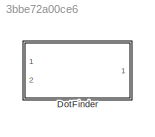
MODEL slx_3bbe72a00ce6
KIND library
CONFIG AbsTol = auto
CONFIG EnableMultiTasking = off
CONFIG FixedStep = auto
CONFIG MaxStep = auto
CONFIG MinStep = auto
CONFIG RelTol = 1e-3
CONFIG SampleTimeConstraint = Unconstrained
CONFIG Solver = VariableStepAuto
CONFIG SolverName = VariableStepAuto
CONFIG StartTime = 0.0
CONFIG StopTime = 10.0
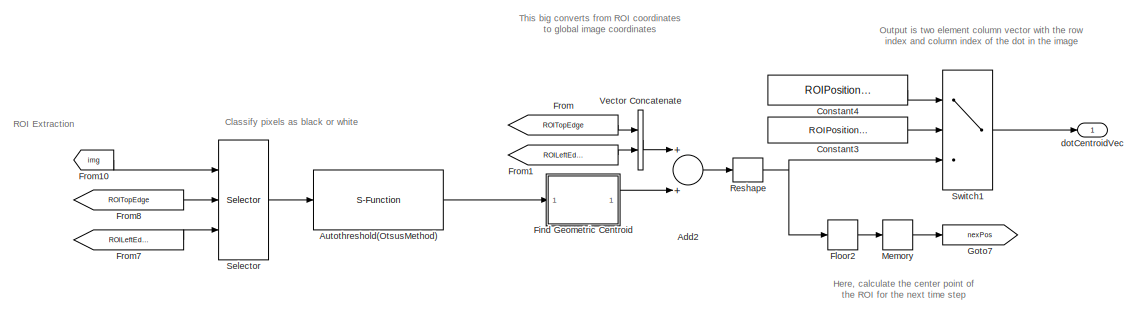
[diagram: DotFinder - part 1/2, top right region]
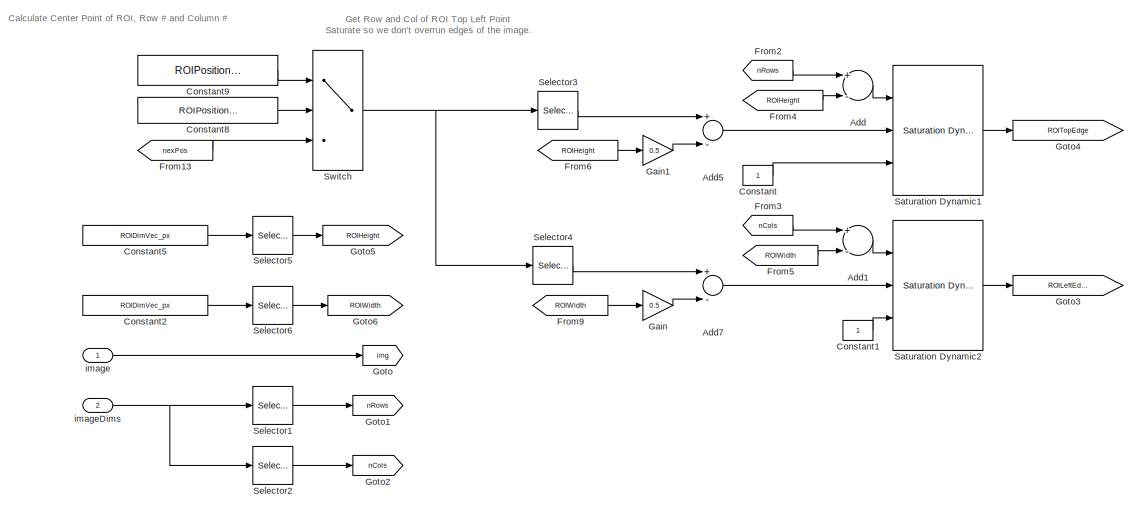
[diagram: DotFinder - part 2/2, left side, full height]
BLOCK [SubSystem] DotFinder
  Ports = [2, 1]
  RequestExecContextInheritance = off
BLOCK [Sum] DotFinder/Add
  InputSameDT = off
  Inputs = +-
  OutDataTypeStr = Inherit: Inherit via internal rule
  Ports = [2, 1]
  SaturateOnIntegerOverflow = off
BLOCK [Sum] DotFinder/Add1
  InputSameDT = off
  Inputs = +-
  OutDataTypeStr = Inherit: Inherit via internal rule
  Ports = [2, 1]
  SaturateOnIntegerOverflow = off
BLOCK [Sum] DotFinder/Add2
  InputSameDT = off
  OutDataTypeStr = Inherit: Inherit via internal rule
  Ports = [2, 1]
  SaturateOnIntegerOverflow = off
BLOCK [Sum] DotFinder/Add5
  InputSameDT = off
  Inputs = +-
  OutDataTypeStr = Inherit: Inherit via internal rule
  Ports = [2, 1]
  SaturateOnIntegerOverflow = off
BLOCK [Sum] DotFinder/Add7
  InputSameDT = off
  Inputs = +-
  OutDataTypeStr = Inherit: Inherit via internal rule
  Ports = [2, 1]
  SaturateOnIntegerOverflow = off
BLOCK [S-Function] DotFinder/Autothreshold(OtsusMethod)
  DialogController = vipDDGCreate
  EnableBusSupport = off
  FunctionName = svipgraythresh
  Parameters = operator, userDefinedRange, umin, umax, threshOut, effMetricOut, outOfRngOpt, scaleThreshold, scaleFactor, P1Mode, P1WordLength, P1FracLength, A1Mode, A1WordLength, A1FracLength, P2Mode, P2WordLength, P2FracLength, A2Mode, A2WordLength, A2FracLength, P3Mode, P3WordLength, P3FracLength, A3Mode, A3WordLength, A3FracLength, P4Mode, P4WordLength, P4FracLength, A4Mode, A4WordLength, A4FracLength, Q1Mod...<+107ch>
  Ports = [1, 1]
  SFcnIsStateOwnerBlock = off
  SFunctionDeploymentMode = off
BLOCK [Constant] DotFinder/Constant
BLOCK [Constant] DotFinder/Constant1
BLOCK [Constant] DotFinder/Constant2
  Value = ROIDimVec_px
BLOCK [Constant] DotFinder/Constant3
  Value = ROIPositionHoldEnable
BLOCK [Constant] DotFinder/Constant4
  Value = ROIPositionHoldCoordinates
BLOCK [Constant] DotFinder/Constant5
  Value = ROIDimVec_px
BLOCK [Constant] DotFinder/Constant8
  Value = ROIPositionHoldEnable
BLOCK [Constant] DotFinder/Constant9
  Value = ROIPositionHoldCoordinates
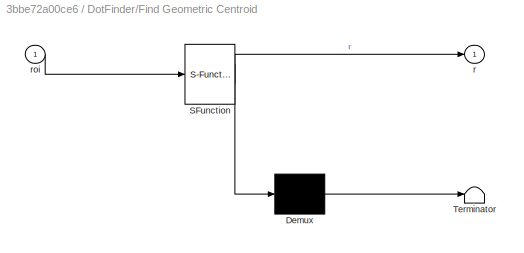
BLOCK [SubSystem] DotFinder/Find Geometric Centroid
  ErrorFcn = Stateflow.Translate.translate
  PermitHierarchicalResolution = ExplicitOnly
  Ports = [1, 1]
  RequestExecContextInheritance = off
  SFBlockType = MATLAB Function
  TreatAsAtomicUnit = on
BLOCK [Demux] DotFinder/Find Geometric Centroid/ Demux 
  Outputs = 1
  Ports = [1, 1]
BLOCK [S-Function] DotFinder/Find Geometric Centroid/ SFunction 
  EnableBusSupport = off
  FunctionName = sf_sfun
  PortCounts = [1 2]
  Ports = [1, 2]
  SFcnIsStateOwnerBlock = off
  SFunctionDeploymentMode = off
  Tag = Stateflow S-Function dotFinder_ul 2
BLOCK [Terminator] DotFinder/Find Geometric Centroid/ Terminator 
BLOCK [Outport] DotFinder/Find Geometric Centroid/r
  IconDisplay = Port number
BLOCK [Inport] DotFinder/Find Geometric Centroid/roi
  IconDisplay = Port number
BLOCK [Rounding] DotFinder/Floor2
  Operator = round
BLOCK [From] DotFinder/From
  GotoTag = ROITopEdge
BLOCK [From] DotFinder/From1
  GotoTag = ROILeftEdge
BLOCK [From] DotFinder/From10
  GotoTag = img
BLOCK [From] DotFinder/From13
  GotoTag = nexPos
BLOCK [From] DotFinder/From2
  GotoTag = nRows
BLOCK [From] DotFinder/From3
  GotoTag = nCols
BLOCK [From] DotFinder/From4
  GotoTag = ROIHeight
BLOCK [From] DotFinder/From5
  GotoTag = ROIWidth
BLOCK [From] DotFinder/From6
  GotoTag = ROIHeight
BLOCK [From] DotFinder/From7
  GotoTag = ROILeftEdge
BLOCK [From] DotFinder/From8
  GotoTag = ROITopEdge
BLOCK [From] DotFinder/From9
  GotoTag = ROIWidth
BLOCK [Gain] DotFinder/Gain
  Gain = 0.5
  OutDataTypeStr = Inherit: Inherit via internal rule
  ParamDataTypeStr = Inherit: Inherit via internal rule
  SaturateOnIntegerOverflow = off
BLOCK [Gain] DotFinder/Gain1
  Gain = 0.5
  OutDataTypeStr = Inherit: Inherit via internal rule
  ParamDataTypeStr = Inherit: Inherit via internal rule
  SaturateOnIntegerOverflow = off
BLOCK [Goto] DotFinder/Goto
  GotoTag = img
BLOCK [Goto] DotFinder/Goto1
  GotoTag = nRows
BLOCK [Goto] DotFinder/Goto2
  GotoTag = nCols
BLOCK [Goto] DotFinder/Goto3
  GotoTag = ROILeftEdge
BLOCK [Goto] DotFinder/Goto4
  GotoTag = ROITopEdge
BLOCK [Goto] DotFinder/Goto5
  GotoTag = ROIHeight
BLOCK [Goto] DotFinder/Goto6
  GotoTag = ROIWidth
BLOCK [Goto] DotFinder/Goto7
  GotoTag = nexPos
BLOCK [Memory] DotFinder/Memory
  InitialCondition = ROIPositionHoldCoordinates(:)
BLOCK [Reshape] DotFinder/Reshape
  OutputDimensionality = Column vector (2-D)
  Ports = [1, 1]
BLOCK [Reference] DotFinder/Saturation Dynamic1  REF=simulink/Discontinuities/Saturation
Dynamic
  Ports = [3, 1]
  SourceBlock = simulink/Discontinuities/Saturation\nDynamic
  SourceProductBaseCode = SL
  SourceProductName = Simulink
  SourceType = Saturation Dynamic
BLOCK [Reference] DotFinder/Saturation Dynamic2  REF=simulink/Discontinuities/Saturation
Dynamic
  Ports = [3, 1]
  SourceBlock = simulink/Discontinuities/Saturation\nDynamic
  SourceProductBaseCode = SL
  SourceProductName = Simulink
  SourceType = Saturation Dynamic
BLOCK [Selector] DotFinder/Selector
  IndexOptions = Starting index (port),Starting index (port)
  Indices = [1 3],1
  InputPortWidth = 3
  NumberOfDimensions = 2
  OutputSizes = ROIDimVec_px(1),ROIDimVec_px(2)
  Ports = [3, 1]
BLOCK [Selector] DotFinder/Selector1
  IndexOptions = Index vector (dialog)
  Indices = 1
  InputPortWidth = 2
  OutputSizes = 1
  Ports = [1, 1]
BLOCK [Selector] DotFinder/Selector2
  IndexOptions = Index vector (dialog)
  Indices = 2
  InputPortWidth = 2
  OutputSizes = 1
  Ports = [1, 1]
BLOCK [Selector] DotFinder/Selector3
  IndexOptions = Index vector (dialog)
  Indices = 1
  InputPortWidth = 2
  OutputSizes = 1
  Ports = [1, 1]
BLOCK [Selector] DotFinder/Selector4
  IndexOptions = Index vector (dialog)
  Indices = 2
  InputPortWidth = 2
  OutputSizes = 1
  Ports = [1, 1]
BLOCK [Selector] DotFinder/Selector5
  IndexOptions = Index vector (dialog)
  Indices = 1
  InputPortWidth = 2
  OutputSizes = 1
  Ports = [1, 1]
BLOCK [Selector] DotFinder/Selector6
  IndexOptions = Index vector (dialog)
  Indices = 2
  InputPortWidth = 2
  OutputSizes = 1
  Ports = [1, 1]
BLOCK [Switch] DotFinder/Switch
  Criteria = u2 > Threshold
  InputSameDT = off
  SaturateOnIntegerOverflow = off
BLOCK [Switch] DotFinder/Switch1
  Criteria = u2 > Threshold
  InputSameDT = off
  SaturateOnIntegerOverflow = off
BLOCK [Concatenate] DotFinder/Vector Concatenate
  Ports = [2, 1]
BLOCK [Outport] DotFinder/dotCentroidVec
  IconDisplay = Port number
  PortDimensions = [2 1]
BLOCK [Inport] DotFinder/image
  IconDisplay = Port number
BLOCK [Inport] DotFinder/imageDims
  IconDisplay = Port number
  Port = 2
ANNOTATION DotFinder: Output is two element column vector with the row index and column index of the dot in the image
ANNOTATION DotFinder: Here, calculate the center point of the ROI for the next time step
ANNOTATION DotFinder: This big converts from ROI coordinates to global image coordinates
ANNOTATION DotFinder: Calculate Center Point of ROI, Row # and Column #
ANNOTATION DotFinder: Classify pixels as black or white
ANNOTATION DotFinder: Get Row and Col of ROI Top Left Point Saturate so we don't overrun edges of the image.
ANNOTATION DotFinder: ROI Extraction
CHART DotFinder/Find Geometric
Centroid states=1 transitions=1
  STATE_LABEL 'eML_blk_kernel()'
  STATE_LABEL "SCRIPT:\nfunction r = fcn(roi)\n% Function to calculate row and column index of the geometric centroid of\n% the ROI.\n\n% Total number of white pixels\nN = sum(sum(roi));\n\n% r = [rowIndex colIndex]^T\nr = [([1:size(roi,1)]*sum(roi,2))/N;...\n     ([1:size(roi,2)]*sum(roi,1)')/N];\n"
